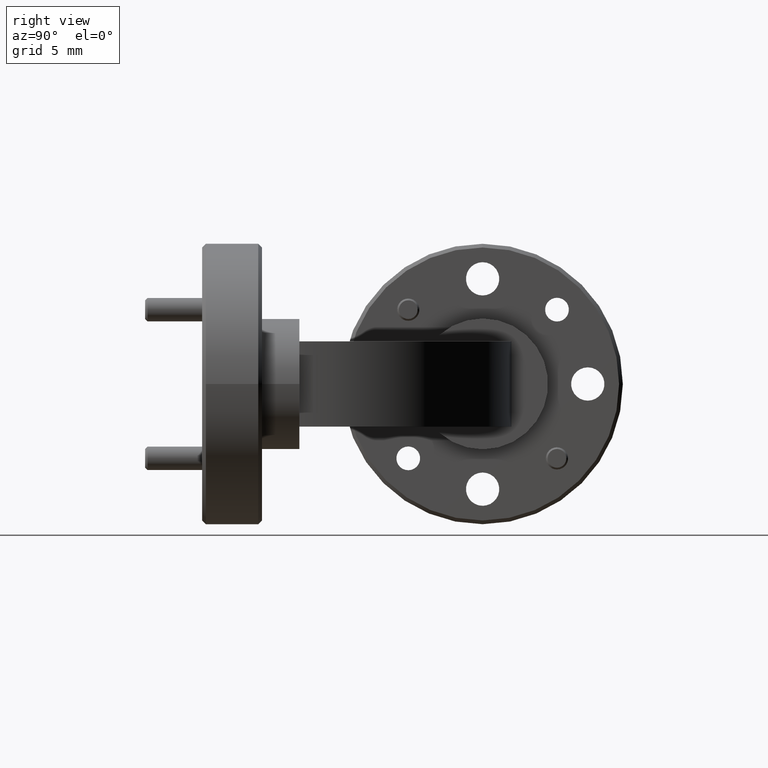
[diagram: clean part render]
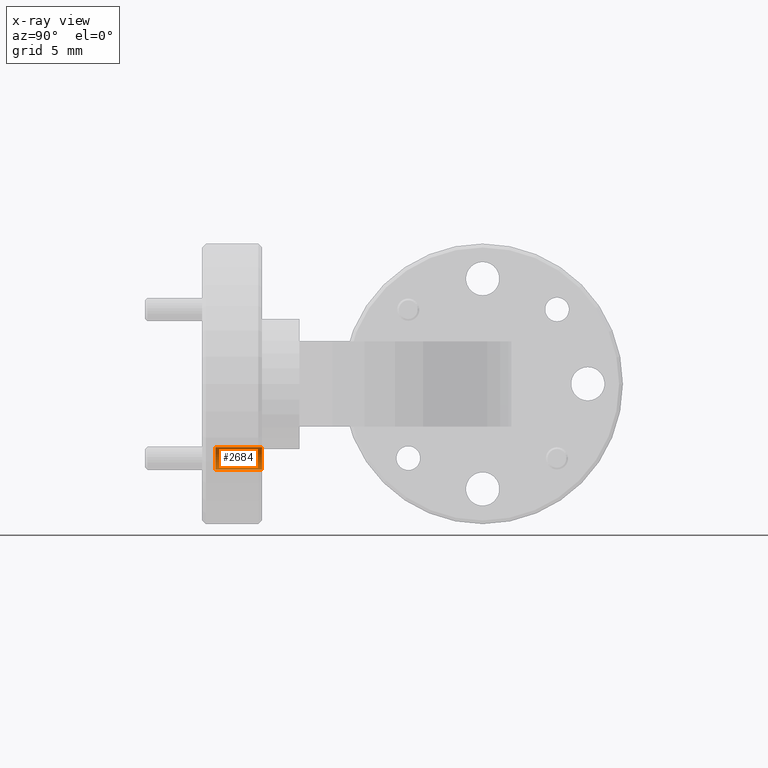
[diagram: x-ray — body ghosted, one internal face saturated and labeled with its STEP entity id]
A machine part, right view, then the same camera in x-ray: the body is ghosted and one INTERNAL B-rep face — a face not visible from any outside direction — is saturated and labeled: STEP entity #2684.
In plain terms, the highlighted cylindrical surface (edge-blend (fillet) strip) has radius 0.7556 mm, axis along (-0, -1, -0).
Its self-contained STEP definition (entity closure, byte-faithful):
#223 = EDGE_CURVE ( 'NONE', #5740, #386, #6799, .T. ) ;
#386 = VERTEX_POINT ( 'NONE', #2212 ) ;
#482 = CARTESIAN_POINT ( 'NONE',  ( -1.548076469346765904, 0.02705549535849833404, 0.3201896179326370606 ) ) ;
#798 = AXIS2_PLACEMENT_3D ( 'NONE', #1687, #2231, #6564 ) ;
#969 = DIRECTION ( 'NONE',  ( -0.000000000000000000, -1.000000000000000000, -0.000000000000000000 ) ) ;
#1119 = DIRECTION ( 'NONE',  ( -0.000000000000000000, -1.000000000000000000, -0.000000000000000000 ) ) ;
#1245 = AXIS2_PLACEMENT_3D ( 'NONE', #482, #5985, #5910 ) ;
#1474 = LINE ( 'NONE', #7702, #6502 ) ;
#1687 = CARTESIAN_POINT ( 'NONE',  ( -1.548076469346765904, -0.1029445046415016496, 0.3201896179326370606 ) ) ;
#1884 = ORIENTED_EDGE ( 'NONE', *, *, #2590, .T. ) ;
#2007 = CARTESIAN_POINT ( 'NONE',  ( -1.548076469346765904, -0.09769450464150161717, 0.2904396179326370619 ) ) ;
#2212 = CARTESIAN_POINT ( 'NONE',  ( -1.548076469346765904, 0.02705549535849833404, 0.2904396179326371175 ) ) ;
#2231 = DIRECTION ( 'NONE',  ( -0.000000000000000000, -1.000000000000000000, -0.000000000000000000 ) ) ;
#2262 = ORIENTED_EDGE ( 'NONE', *, *, #2997, .T. ) ;
#2511 = VECTOR ( 'NONE', #4926, 39.37007874015748143 ) ;
#2551 = CARTESIAN_POINT ( 'NONE',  ( -1.548076469346765904, 0.02705549535849833404, 0.3499396179326370038 ) ) ;
#2590 = EDGE_CURVE ( 'NONE', #4853, #7331, #4496, .T. ) ;
#2684 = ADVANCED_FACE ( 'NONE', ( #2827 ), #6524, .F. ) ;
#2827 = FACE_OUTER_BOUND ( 'NONE', #5786, .T. ) ;
#2949 = CARTESIAN_POINT ( 'NONE',  ( -1.548076469346765904, -0.09769450464150161717, 0.3499396179326370593 ) ) ;
#2997 = EDGE_CURVE ( 'NONE', #5740, #4853, #3576, .T. ) ;
#3427 = CARTESIAN_POINT ( 'NONE',  ( -1.548076469346765904, -0.09769450464150161717, 0.3201896179326370606 ) ) ;
#3500 = DIRECTION ( 'NONE',  ( 0.000000000000000000, 0.000000000000000000, -1.000000000000000000 ) ) ;
#3576 = LINE ( 'NONE', #4775, #2511 ) ;
#4027 = ORIENTED_EDGE ( 'NONE', *, *, #223, .F. ) ;
#4496 = CIRCLE ( 'NONE', #5515, 0.02975000000000000214 ) ;
#4775 = CARTESIAN_POINT ( 'NONE',  ( -1.548076469346765904, -0.1029445046415016496, 0.3499396179326370593 ) ) ;
#4853 = VERTEX_POINT ( 'NONE', #2949 ) ;
#4926 = DIRECTION ( 'NONE',  ( -0.000000000000000000, -1.000000000000000000, -0.000000000000000000 ) ) ;
#5442 = ORIENTED_EDGE ( 'NONE', *, *, #6392, .F. ) ;
#5515 = AXIS2_PLACEMENT_3D ( 'NONE', #3427, #1119, #3500 ) ;
#5740 = VERTEX_POINT ( 'NONE', #2551 ) ;
#5786 = EDGE_LOOP ( 'NONE', ( #4027, #2262, #1884, #5442 ) ) ;
#5910 = DIRECTION ( 'NONE',  ( 0.000000000000000000, 0.000000000000000000, -1.000000000000000000 ) ) ;
#5985 = DIRECTION ( 'NONE',  ( -0.000000000000000000, -1.000000000000000000, -0.000000000000000000 ) ) ;
#6392 = EDGE_CURVE ( 'NONE', #386, #7331, #1474, .T. ) ;
#6502 = VECTOR ( 'NONE', #969, 39.37007874015748143 ) ;
#6524 = CYLINDRICAL_SURFACE ( 'NONE', #798, 0.02974999999999997091 ) ;
#6564 = DIRECTION ( 'NONE',  ( 0.000000000000000000, 0.000000000000000000, -1.000000000000000000 ) ) ;
#6799 = CIRCLE ( 'NONE', #1245, 0.02974999999999993622 ) ;
#7331 = VERTEX_POINT ( 'NONE', #2007 ) ;
#7702 = CARTESIAN_POINT ( 'NONE',  ( -1.548076469346765904, -0.1029445046415016496, 0.2904396179326371175 ) ) ;